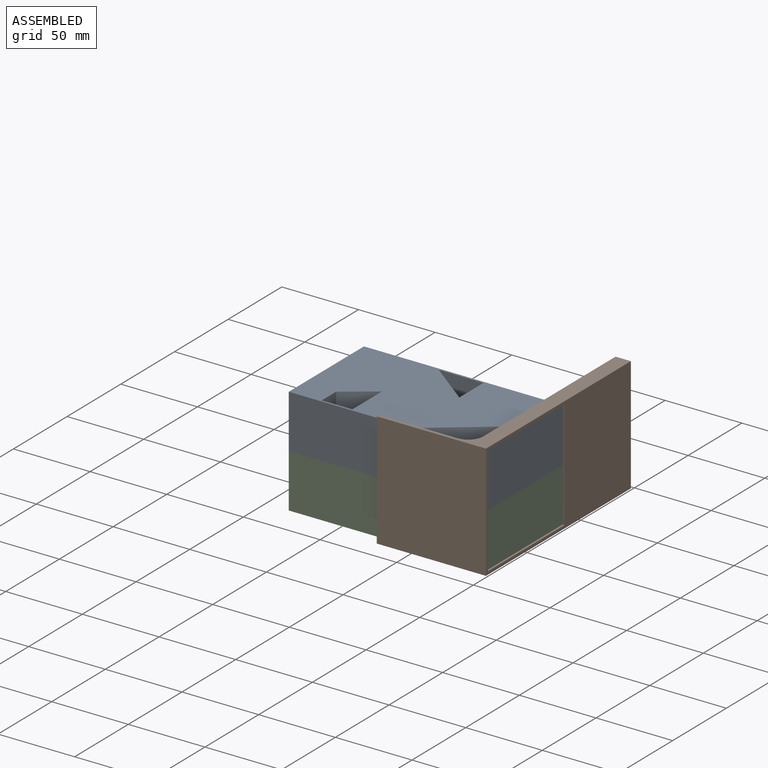
[diagram: assembled view]
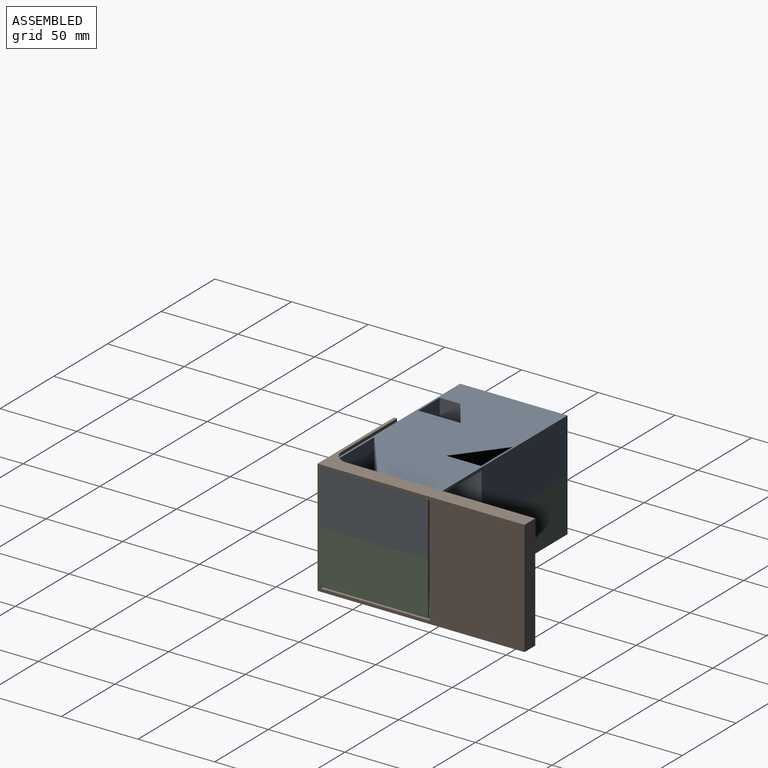
[diagram: assembled view, second angle]
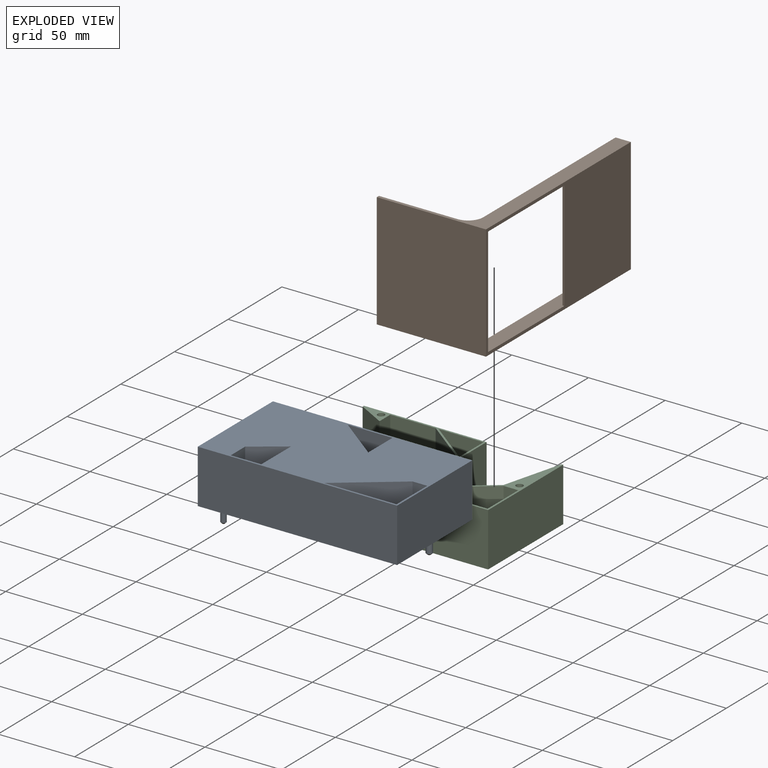
[diagram: exploded view]
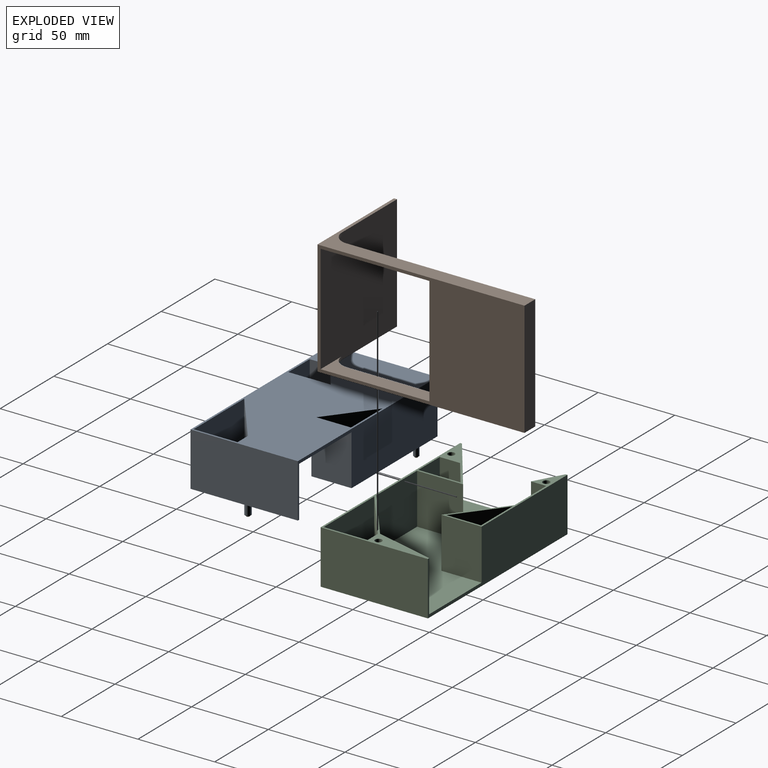
[diagram: exploded view, second angle]
ASSEMBLY  parts=3 mates=5
PART A: 38 faces, bbox 130x70x43 mm
  f0: plane 70x35mm, normal (-1,0,0), area 219.2mm2, adj f1,f2,f3,f7,f15,f19,f23,f28
  f1: plane 130x35mm, normal (0,1,0), area 2939.6mm2, adj f0,f2,f3,f6,f16,f19,f22,f28
  f2: plane 128.8x68.8mm, normal (0,0,-1), area 6564mm2, adj f0,f1,f4,f5,f6,f7,f8,f20
  f3: plane 130x70mm, normal (0,0,1), area 7550.7mm2, adj f0,f1,f9,f10,f11,f12,f13,f14
  f4: plane 37.87x33mm, normal (0,1,0), area 1249.7mm2, adj f2,f5,f8,f19
  f5: plane 38.84x33mm, normal (-0.61,0.8,0), area 1611.2mm2, adj f2,f4,f6,f19
  f6: plane 39.22x33mm, normal (-0.97,0.25,0), area 1337.7mm2, adj f1,f2,f5,f19
  f7: plane 41.83x33mm, normal (-0.58,0.81,0), area 1698.6mm2, adj f0,f2,f8,f19
  f8: plane 33x30mm, normal (1,0,0), area 990mm2, adj f2,f4,f7,f19
  f9: plane 35x28.63mm, normal (-1,0,0), area 1002mm2, adj f3,f10,f17,f19
  f10: plane 47.12x35mm, normal (0,1,0), area 1649.3mm2, adj f3,f9,f11,f19
  f11: plane 37.59x35mm, normal (0.61,-0.8,0), area 1653.8mm2, adj f3,f10,f17,f19
  f12: plane 35x27.66mm, normal (-1,0,0), area 968.2mm2, adj f3,f13,f18,f19
  f13: plane 35x19.93mm, normal (0,1,0), area 697.5mm2, adj f3,f12,f14,f19
  f14: plane 35x13.37mm, normal (1,0,0), area 467.9mm2, adj f3,f13,f18,f19
  f15: plane 130x35mm, normal (0,-1,0), area 4550mm2, adj f0,f3,f16,f19
  f16: plane 70x35mm, normal (1,0,0), area 2450mm2, adj f1,f3,f15,f19
  f17: plane 35x9.53mm, normal (0,-1,0), area 333.7mm2, adj f3,f9,f11,f19
  f18: plane 35x19.93mm, normal (0.58,-0.81,0), area 858.3mm2, adj f3,f12,f14,f19
  f19: plane 130x70mm, normal (0,0,-1), area 703.3mm2, adj f0,f1,f4,f5,f6,f7,f8,f9
  f20: plane 33x29.63mm, normal (0,-1,0), area 977.7mm2, adj f2,f21,f24,f28
  f21: plane 33x32.37mm, normal (-0.61,-0.79,0), area 1349.8mm2, adj f2,f20,f22,f28
  f22: plane 33x26.2mm, normal (1,0,0), area 864.6mm2, adj f1,f2,f21,f28
  f23: plane 33x18mm, normal (-0.49,-0.87,0), area 679.5mm2, adj f0,f2,f24,f28
  f24: plane 33x10mm, normal (1,0,0), area 330mm2, adj f2,f20,f23,f28
  f25: plane 35x29.21mm, normal (0.61,0.79,0), area 1291.7mm2, adj f3,f26,f27,f28
  f26: plane 35x29.21mm, normal (0,-1,0), area 1022.3mm2, adj f3,f25,f27,f28
  f27: plane 35x22.56mm, normal (-1,0,0), area 789.5mm2, adj f3,f25,f26,f28
  f28: plane 80x26.2mm, normal (0,0,-1), area 251.6mm2, adj f0,f1,f20,f21,f22,f23,f24,f25
  f29: plane 1.5x1.5mm, normal (0,0,-1), area 1.8mm2, adj f35
  f30: cylinder r=1.75mm len=7mm, axis (0,0,1), area 77mm2, adj f28,f35
  f31: plane 1.5x1.5mm, normal (0,0,-1), area 1.8mm2, adj f36
  f32: cylinder r=1.75mm len=7mm, axis (0,0,1), area 77mm2, adj f19,f36
  f33: plane 2x2mm, normal (0,0,-1), area 3.1mm2, adj f37
  f34: cylinder r=2mm len=7mm, axis (0,0,1), area 88mm2, adj f19,f37
  f35: cone r=1.75mm half-angle=45deg, axis (0,0,1), area 11.1mm2, adj f29,f30
  f36: cone r=1.75mm half-angle=45deg, axis (0,0,1), area 11.1mm2, adj f31,f32
  f37: cone r=2mm half-angle=45deg, axis (0,0,1), area 13.3mm2, adj f33,f34
PART B: 15 faces, bbox 135x71.2x75 mm
  f0: plane 75x71.2mm, normal (1,0,0), area 5260mm2, adj f4,f6,f7,f8,f11,f12,f13,f14
  f1: plane 71x8.8mm, normal (-1,0,0), area 624.8mm2, adj f3,f9,f11,f12
  f2: plane 71x1.2mm, normal (-1,0,0), area 85.2mm2, adj f3,f4,f11,f12
  f3: plane 71x60mm, normal (0,-1,0), area 4260mm2, adj f1,f2,f11,f12
  f4: plane 135x75mm, normal (0,1,0), area 5084mm2, adj f0,f2,f5,f7,f8,f10,f11,f12
  f5: plane 75x71.2mm, normal (-1,0,0), area 5340mm2, adj f4,f6,f7,f8
  f6: plane 75x2mm, normal (0,-1,0), area 150mm2, adj f0,f5,f7,f8
  f7: plane 135x71.2mm, normal (0,0,1), area 1493.9mm2, adj f0,f4,f5,f6,f9,f10,f13
  f8: plane 135x71.2mm, normal (0,0,-1), area 1493.9mm2, adj f0,f4,f5,f6,f9,f10,f14
  f9: plane 123x75mm, normal (0,-1,0), area 634mm2, adj f1,f7,f8,f10,f11,f12,f13,f14
  f10: plane 75x10mm, normal (1,0,0), area 750mm2, adj f4,f7,f8,f9
  f11: plane 131x20mm, normal (0,0,1), area 1259.5mm2, adj f0,f1,f2,f3,f4,f9,f14
  f12: plane 131x20mm, normal (0,0,-1), area 1259.5mm2, adj f0,f1,f2,f3,f4,f9,f13
  f13: cylinder r=10mm len=10mm, axis (0,0,-1), area 31.4mm2, adj f0,f7,f9,f12
  f14: cylinder r=10mm len=10mm, axis (0,0,-1), area 31.4mm2, adj f0,f8,f9,f11
PART C: 35 faces, bbox 130x70x35 mm
  f0: plane 70x35mm, normal (-1,0,0), area 219.2mm2, adj f1,f2,f3,f13,f14,f21,f25,f31
  f1: plane 130x35mm, normal (0,1,0), area 2939.6mm2, adj f0,f2,f3,f6,f15,f21,f24,f31
  f2: plane 128.8x68.8mm, normal (0,0,1), area 6564mm2, adj f0,f1,f4,f5,f6,f13,f18,f22
  f3: plane 130x70mm, normal (0,0,-1), area 7551.7mm2, adj f0,f1,f7,f8,f9,f10,f11,f12
  f4: plane 37.87x33mm, normal (0,1,0), area 1249.7mm2, adj f2,f5,f18,f21
  f5: plane 38.84x33mm, normal (-0.61,0.8,0), area 1611.2mm2, adj f2,f4,f6,f21
  f6: plane 39.22x33mm, normal (-0.97,0.25,0), area 1337.7mm2, adj f1,f2,f5,f21
  f7: plane 35x28.63mm, normal (-1,0,0), area 1002mm2, adj f3,f8,f16,f21
  f8: plane 47.12x35mm, normal (0,1,0), area 1649.3mm2, adj f3,f7,f9,f21
  f9: plane 37.59x35mm, normal (0.61,-0.8,0), area 1653.8mm2, adj f3,f8,f16,f21
  f10: plane 35x27.66mm, normal (-1,0,0), area 968.2mm2, adj f3,f11,f17,f21
  f11: plane 35x19.93mm, normal (0,1,0), area 697.5mm2, adj f3,f10,f12,f21
  f12: plane 35x13.27mm, normal (1,0,0), area 464.4mm2, adj f3,f11,f17,f21
  f13: plane 41.83x33mm, normal (-0.58,0.81,0), area 1698.6mm2, adj f0,f2,f18,f21
  f14: plane 130x35mm, normal (0,-1,0), area 4550mm2, adj f0,f3,f15,f21
  f15: plane 70x35mm, normal (1,0,0), area 2450mm2, adj f1,f3,f14,f21
  f16: plane 35x9.53mm, normal (0,-1,0), area 333.7mm2, adj f3,f7,f9,f21
  f17: plane 35x19.93mm, normal (0.59,-0.81,0), area 860.4mm2, adj f3,f10,f12,f21
  f18: plane 33x30mm, normal (1,0,0), area 990mm2, adj f2,f4,f13,f21
  f19: cylinder r=2.25mm len=10mm, axis (0,0,-1), area 141.4mm2, adj f21,f33
  f20: cylinder r=2.25mm len=10mm, axis (0,0,-1), area 141.4mm2, adj f21,f34
  f21: plane 130x70mm, normal (0,0,1), area 694.6mm2, adj f0,f1,f4,f5,f6,f7,f8,f9
  f22: plane 33x29.63mm, normal (0,-1,0), area 977.7mm2, adj f2,f23,f26,f31
  f23: plane 33x32.37mm, normal (-0.61,-0.79,0), area 1349.8mm2, adj f2,f22,f24,f31
  f24: plane 33x26.2mm, normal (1,0,0), area 864.6mm2, adj f1,f2,f23,f31
  f25: plane 33x18mm, normal (-0.49,-0.87,0), area 679.5mm2, adj f0,f2,f26,f31
  f26: plane 33x10mm, normal (1,0,0), area 330mm2, adj f2,f22,f25,f31
  f27: plane 35x29.21mm, normal (0.61,0.79,0), area 1291.7mm2, adj f3,f28,f29,f31
  f28: plane 35x29.21mm, normal (0,-1,0), area 1022.4mm2, adj f3,f27,f29,f31
  f29: plane 35x22.56mm, normal (-1,0,0), area 789.5mm2, adj f3,f27,f28,f31
  f30: cylinder r=2.25mm len=10mm, axis (0,0,-1), area 141.4mm2, adj f31,f32
  f31: plane 80x26.2mm, normal (0,0,1), area 245.3mm2, adj f0,f1,f22,f23,f24,f25,f26,f27
  f32: plane 4.5x4.5mm, normal (0,0,1), area 15.9mm2, adj f30
  f33: plane 4.5x4.5mm, normal (0,0,1), area 15.9mm2, adj f19
  f34: plane 4.5x4.5mm, normal (0,0,1), area 15.9mm2, adj f20
PLACE A t=(-33.7,-9.53,84.89)mm
PLACE B rot(axis=(0.71,0.71,0),180deg) t=(-104.9,120.47,86.89)mm
PLACE C t=(-33.7,-9.53,14.89)mm fixed
MATE slider A.f32 <-> C.f19  axis (0,0,1) through (-149.7,-5.53,42.89)mm
MATE planar A.f15 <-> B.f0  axis (0,-1,0) through (-98.7,-9.53,67.39)mm
MATE planar A.f28 <-> C.f31  axis (0,0,-1) through (-123.8,54.86,49.89)mm
MATE planar A.f3 <-> B.f11  axis (0,0,1) through (-33.7,25.47,84.89)mm
MATE planar C.f15 <-> B.f4  axis (1,0,0) through (-33.7,25.47,32.39)mm
